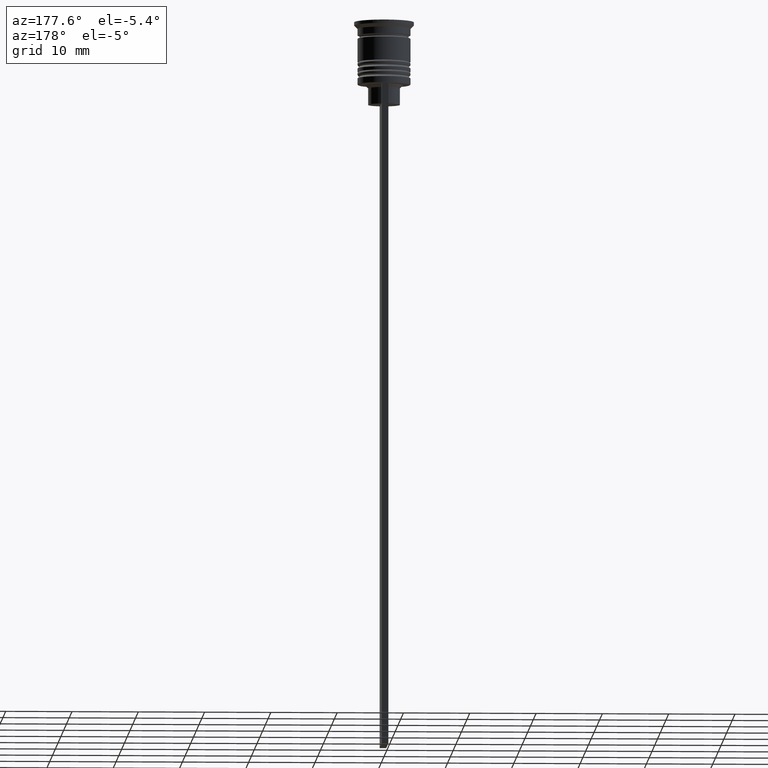
[diagram: clean part render]
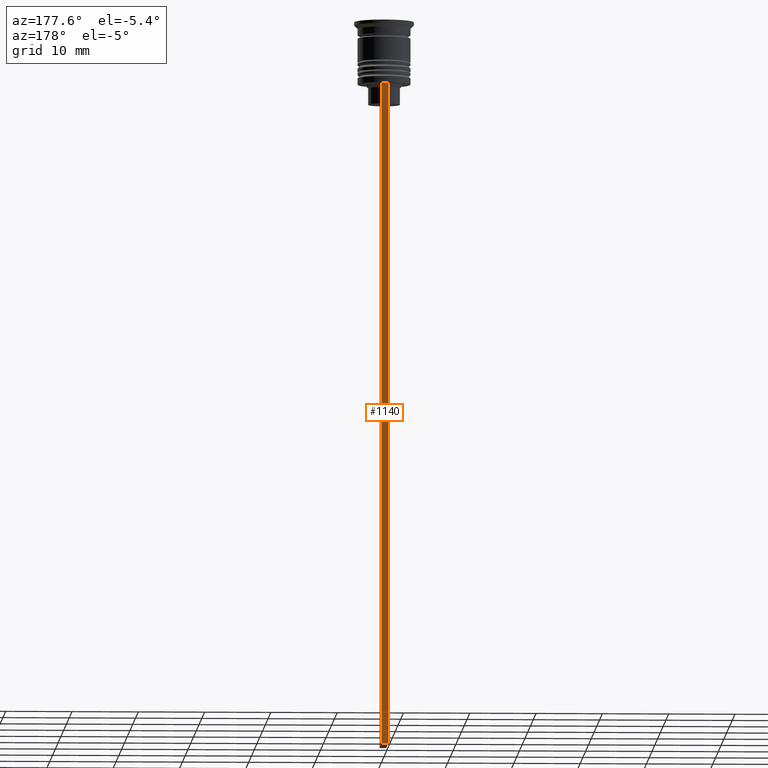
[diagram: same view with one face highlighted and labeled with its STEP entity id]
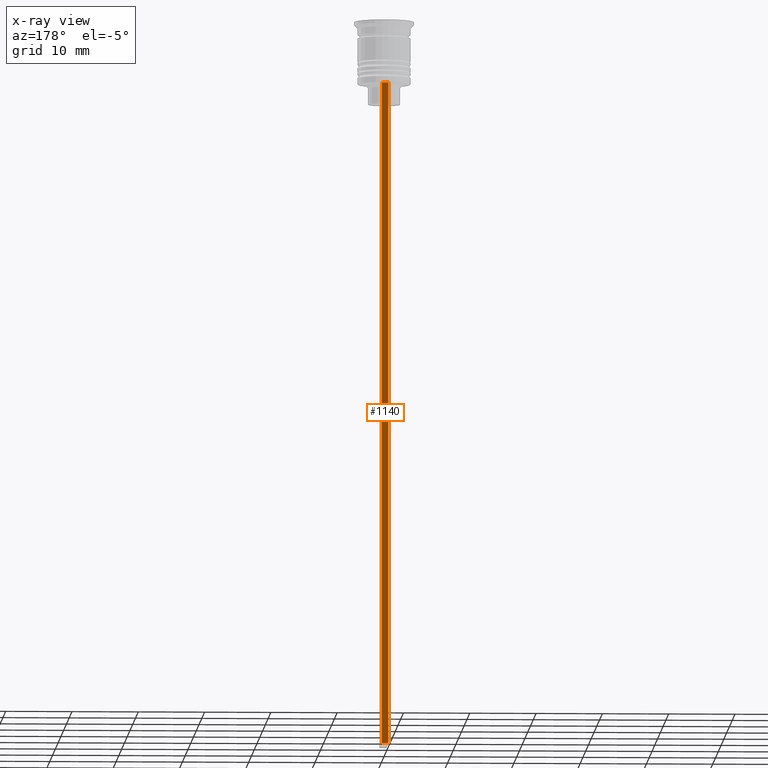
[diagram: x-ray of the same camera — body ghosted, the highlighted face saturated]
A machine part, auxiliary view. The second image highlights one B-rep face of the part: STEP entity #1140.
The next image is the same camera in x-ray: the body ghosted, the highlighted face saturated — about 0% of this face is hidden behind the body in this view.
In plain terms, the highlighted planar face has unit normal (0, -1, -0).
Its self-contained STEP definition (entity closure, byte-faithful):
#62 = VERTEX_POINT ( 'NONE', #1698 ) ;
#81 = EDGE_CURVE ( 'NONE', #1348, #1766, #2135, .T. ) ;
#175 = ORIENTED_EDGE ( 'NONE', *, *, #2274, .T. ) ;
#319 = DIRECTION ( 'NONE',  ( 0.000000000000000000, 0.000000000000000000, -1.000000000000000000 ) ) ;
#370 = CARTESIAN_POINT ( 'NONE',  ( -0.5000000000000000000, 4.000000000000000000, -1.437742251701450202 ) ) ;
#404 = VECTOR ( 'NONE', #870, 1000.000000000000000 ) ;
#410 = LINE ( 'NONE', #2158, #2243 ) ;
#513 = DIRECTION ( 'NONE',  ( 0.000000000000000000, 0.000000000000000000, -1.000000000000000000 ) ) ;
#556 = ORIENTED_EDGE ( 'NONE', *, *, #81, .T. ) ;
#571 = EDGE_CURVE ( 'NONE', #1348, #62, #910, .T. ) ;
#626 = DIRECTION ( 'NONE',  ( -1.000000000000000000, 0.000000000000000000, 0.000000000000000000 ) ) ;
#688 = VERTEX_POINT ( 'NONE', #2360 ) ;
#706 = ORIENTED_EDGE ( 'NONE', *, *, #1957, .T. ) ;
#708 = EDGE_LOOP ( 'NONE', ( #1175, #556, #706, #175 ) ) ;
#870 = DIRECTION ( 'NONE',  ( 0.000000000000000000, 0.000000000000000000, -1.000000000000000000 ) ) ;
#910 = LINE ( 'NONE', #370, #1850 ) ;
#925 = AXIS2_PLACEMENT_3D ( 'NONE', #1662, #1508, #513 ) ;
#944 = CARTESIAN_POINT ( 'NONE',  ( 0.5000000000000000000, 4.000000000000000000, -9.500000000000000000 ) ) ;
#994 = LINE ( 'NONE', #1227, #404 ) ;
#1140 = ADVANCED_FACE ( 'NONE', ( #1302 ), #2273, .F. ) ;
#1175 = ORIENTED_EDGE ( 'NONE', *, *, #571, .F. ) ;
#1227 = CARTESIAN_POINT ( 'NONE',  ( 0.5000000000000000000, 4.000000000000000000, -1.437742251701450202 ) ) ;
#1302 = FACE_OUTER_BOUND ( 'NONE', #708, .T. ) ;
#1348 = VERTEX_POINT ( 'NONE', #1880 ) ;
#1508 = DIRECTION ( 'NONE',  ( 0.000000000000000000, -1.000000000000000000, -0.000000000000000000 ) ) ;
#1662 = CARTESIAN_POINT ( 'NONE',  ( 0.5000000000000000000, 4.000000000000000000, -1.437742251701450202 ) ) ;
#1698 = CARTESIAN_POINT ( 'NONE',  ( -0.5000000000000000000, 4.000000000000000000, -109.5000000000000000 ) ) ;
#1718 = DIRECTION ( 'NONE',  ( 1.000000000000000000, 0.000000000000000000, 0.000000000000000000 ) ) ;
#1766 = VERTEX_POINT ( 'NONE', #2367 ) ;
#1850 = VECTOR ( 'NONE', #319, 1000.000000000000000 ) ;
#1880 = CARTESIAN_POINT ( 'NONE',  ( -0.5000000000000000000, 4.000000000000000000, -9.500000000000000000 ) ) ;
#1957 = EDGE_CURVE ( 'NONE', #1766, #688, #994, .T. ) ;
#2016 = VECTOR ( 'NONE', #1718, 1000.000000000000000 ) ;
#2135 = LINE ( 'NONE', #944, #2016 ) ;
#2158 = CARTESIAN_POINT ( 'NONE',  ( 0.5000000000000000000, 4.000000000000000000, -109.5000000000000000 ) ) ;
#2243 = VECTOR ( 'NONE', #626, 1000.000000000000000 ) ;
#2273 = PLANE ( 'NONE',  #925 ) ;
#2274 = EDGE_CURVE ( 'NONE', #688, #62, #410, .T. ) ;
#2360 = CARTESIAN_POINT ( 'NONE',  ( 0.5000000000000000000, 4.000000000000000000, -109.5000000000000000 ) ) ;
#2367 = CARTESIAN_POINT ( 'NONE',  ( 0.5000000000000000000, 4.000000000000000000, -9.500000000000000000 ) ) ;